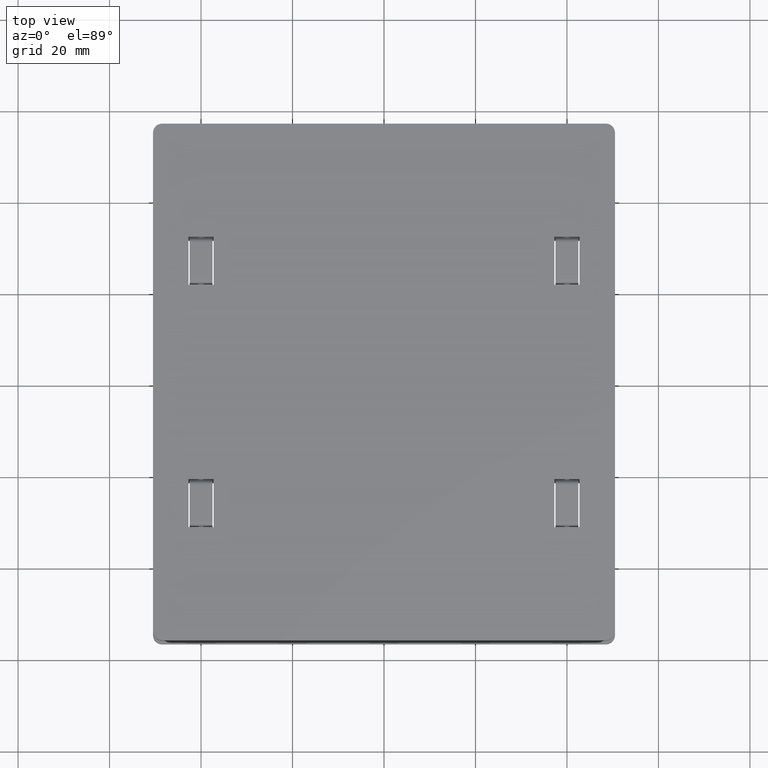
[diagram: clean part render]
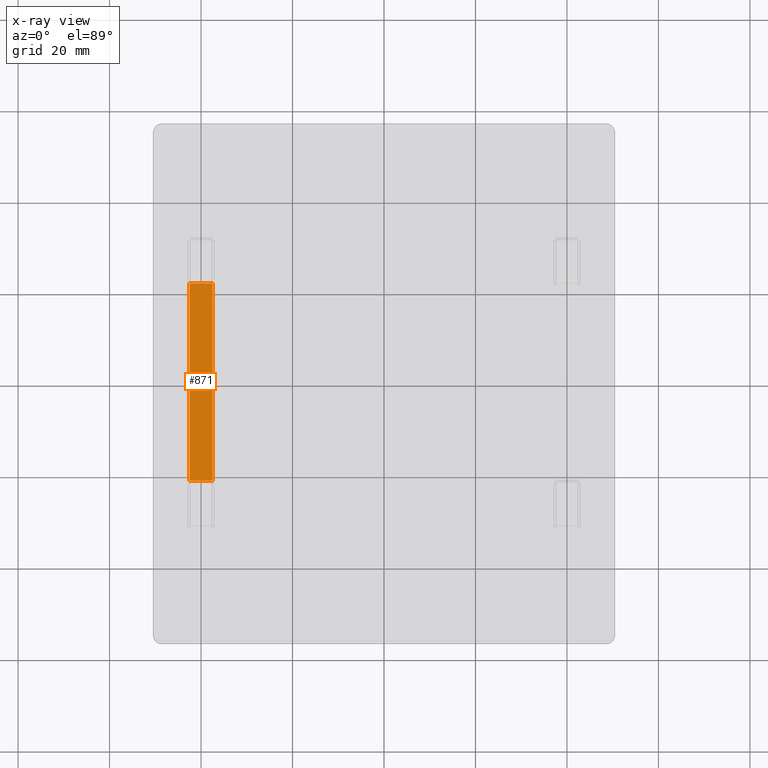
[diagram: x-ray — body ghosted, one internal face saturated and labeled with its STEP entity id]
A machine part, top view, then the same camera in x-ray: the body is ghosted and one INTERNAL B-rep face — a face not visible from any outside direction — is saturated and labeled: STEP entity #871.
In plain terms, the highlighted planar face has unit normal (0, 0, 1).
Its self-contained STEP definition (entity closure, byte-faithful):
#68 = ORIENTED_EDGE ( 'NONE', *, *, #1723, .T. ) ;
#205 = EDGE_CURVE ( 'NONE', #1129, #1242, #2274, .T. ) ;
#397 = VERTEX_POINT ( 'NONE', #1093 ) ;
#552 = B_SPLINE_CURVE_WITH_KNOTS ( 'NONE', 1,
 ( #754, #1633 ),
 .UNSPECIFIED., .F., .F.,
 ( 2, 2 ),
 ( 0.000000000000000000, 0.1666666666666666574 ),
 .UNSPECIFIED. ) ;
#632 = PLANE ( 'NONE',  #1231 ) ;
#706 = CARTESIAN_POINT ( 'NONE',  ( -20.50000000000000355, 21.49999999999997158, -4.999999999999997335 ) ) ;
#739 = CARTESIAN_POINT ( 'NONE',  ( -20.50000000000000355, 21.49999999999997158, 0.000000000000000000 ) ) ;
#754 = CARTESIAN_POINT ( 'NONE',  ( -20.50000000000000355, -21.50000000000001066, -4.999999999999997335 ) ) ;
#765 = CARTESIAN_POINT ( 'NONE',  ( -20.50000000000000355, -43.50000000000002132, -4.999999999999997335 ) ) ;
#796 = FACE_OUTER_BOUND ( 'NONE', #1799, .T. ) ;
#824 = DIRECTION ( 'NONE',  ( 0.000000000000000000, -1.000000000000000000, 0.000000000000000000 ) ) ;
#825 = EDGE_CURVE ( 'NONE', #397, #1242, #552, .T. ) ;
#871 = ADVANCED_FACE ( 'NONE', ( #796 ), #632, .T. ) ;
#879 = VECTOR ( 'NONE', #2125, 1000.000000000000000 ) ;
#918 = VECTOR ( 'NONE', #824, 1000.000000000000000 ) ;
#1093 = CARTESIAN_POINT ( 'NONE',  ( -20.50000000000000355, -21.50000000000001066, -4.999999999999997335 ) ) ;
#1129 = VERTEX_POINT ( 'NONE', #739 ) ;
#1132 = DIRECTION ( 'NONE',  ( 0.000000000000000000, 0.000000000000000000, 1.000000000000000000 ) ) ;
#1231 = AXIS2_PLACEMENT_3D ( 'NONE', #765, #1838, #1132 ) ;
#1242 = VERTEX_POINT ( 'NONE', #1513 ) ;
#1459 = EDGE_CURVE ( 'NONE', #1129, #1489, #1929, .T. ) ;
#1489 = VERTEX_POINT ( 'NONE', #2091 ) ;
#1513 = CARTESIAN_POINT ( 'NONE',  ( -20.50000000000000355, -21.50000000000001066, 0.000000000000000000 ) ) ;
#1541 = ORIENTED_EDGE ( 'NONE', *, *, #825, .T. ) ;
#1633 = CARTESIAN_POINT ( 'NONE',  ( -20.50000000000000355, -21.50000000000001066, 0.000000000000000000 ) ) ;
#1694 = CARTESIAN_POINT ( 'NONE',  ( -20.50000000000000355, -43.50000000000002132, -4.999999999999997335 ) ) ;
#1723 = EDGE_CURVE ( 'NONE', #1489, #397, #1887, .T. ) ;
#1799 = EDGE_LOOP ( 'NONE', ( #68, #1541, #2007, #2047 ) ) ;
#1838 = DIRECTION ( 'NONE',  ( -1.000000000000000000, 0.000000000000000000, 0.000000000000000000 ) ) ;
#1887 = LINE ( 'NONE', #1694, #918 ) ;
#1929 = B_SPLINE_CURVE_WITH_KNOTS ( 'NONE', 1,
 ( #2266, #706 ),
 .UNSPECIFIED., .F., .F.,
 ( 2, 2 ),
 ( 0.5000000000000001110, 0.6666666666666666297 ),
 .UNSPECIFIED. ) ;
#1940 = CARTESIAN_POINT ( 'NONE',  ( -20.50000000000000355, -43.50000000000002132, 0.000000000000000000 ) ) ;
#2007 = ORIENTED_EDGE ( 'NONE', *, *, #205, .F. ) ;
#2047 = ORIENTED_EDGE ( 'NONE', *, *, #1459, .T. ) ;
#2091 = CARTESIAN_POINT ( 'NONE',  ( -20.50000000000000355, 21.49999999999997158, -4.999999999999997335 ) ) ;
#2125 = DIRECTION ( 'NONE',  ( 0.000000000000000000, -1.000000000000000000, 0.000000000000000000 ) ) ;
#2266 = CARTESIAN_POINT ( 'NONE',  ( -20.50000000000000355, 21.49999999999997158, 0.000000000000000000 ) ) ;
#2274 = LINE ( 'NONE', #1940, #879 ) ;